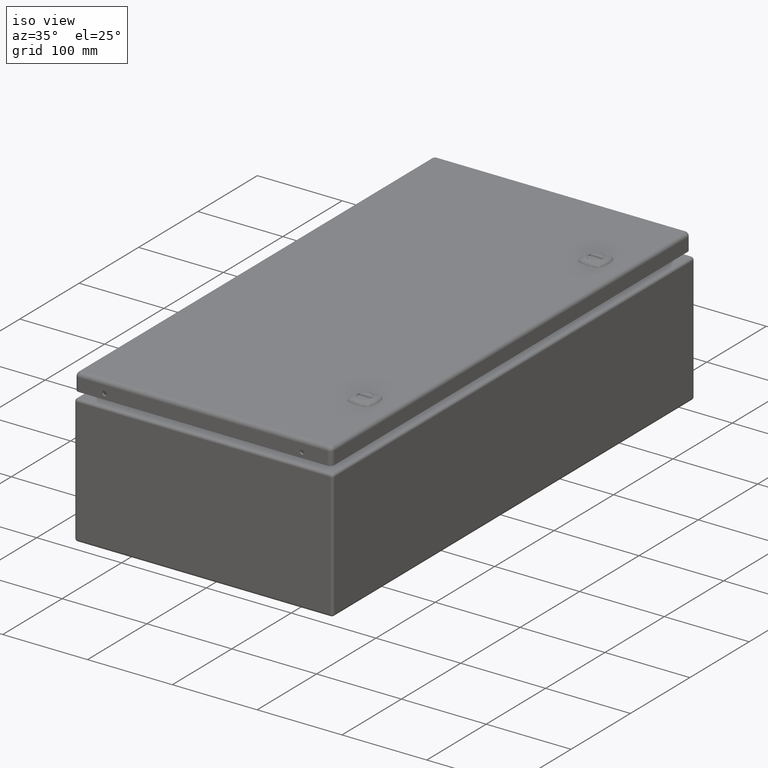
[diagram: clean part render]
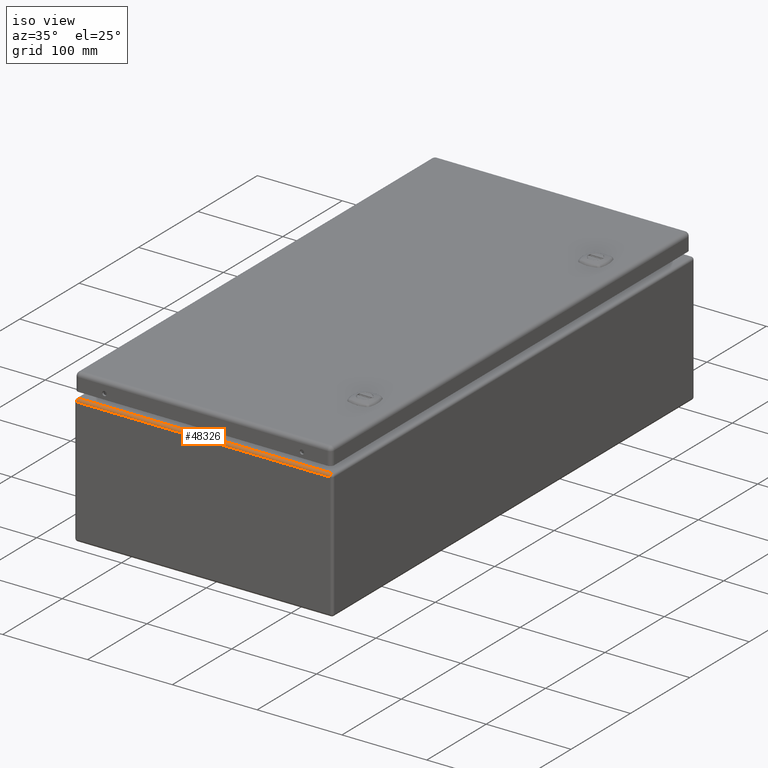
[diagram: same view with one face highlighted and labeled with its STEP entity id]
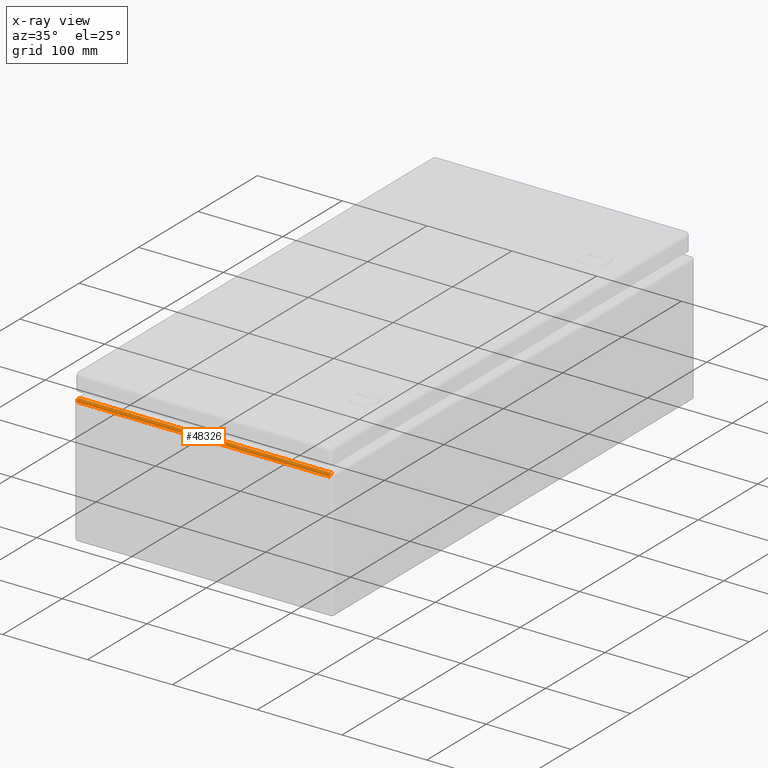
[diagram: x-ray of the same camera — body ghosted, the highlighted face saturated]
A machine part, iso view. The second image highlights one B-rep face of the part: STEP entity #48326.
The next image is the same camera in x-ray: the body ghosted, the highlighted face saturated — about 0% of this face is hidden behind the body in this view.
In plain terms, the highlighted cylindrical surface (edge-blend (fillet) strip) has radius 3.0734 mm, axis along (-1, -0, -0).
Its self-contained STEP definition (entity closure, byte-faithful):
#4072=LINE('',#68868,#7897);
#4112=LINE('',#69075,#7937);
#7897=VECTOR('',#56377,0.393700787401575);
#7937=VECTOR('',#56631,0.393700787401575);
#11710=CYLINDRICAL_SURFACE('',#52159,0.121);
#12394=FACE_OUTER_BOUND('',#15322,.T.);
#15322=EDGE_LOOP('',(#32536,#32537,#32538,#32539));
#18414=CIRCLE('',#52076,0.121);
#18418=CIRCLE('',#52085,0.121);
#20108=VERTEX_POINT('',#68865);
#20109=VERTEX_POINT('',#68867);
#20128=VERTEX_POINT('',#68948);
#20131=VERTEX_POINT('',#68967);
#24820=EDGE_CURVE('',#20109,#20108,#4072,.T.);
#24862=EDGE_CURVE('',#20128,#20108,#18414,.T.);
#24872=EDGE_CURVE('',#20109,#20131,#18418,.T.);
#24926=EDGE_CURVE('',#20128,#20131,#4112,.T.);
#32536=ORIENTED_EDGE('',*,*,#24862,.F.);
#32537=ORIENTED_EDGE('',*,*,#24926,.T.);
#32538=ORIENTED_EDGE('',*,*,#24872,.F.);
#32539=ORIENTED_EDGE('',*,*,#24820,.T.);
#48326=ADVANCED_FACE('',(#12394),#11710,.T.);
#52076=AXIS2_PLACEMENT_3D('',#68950,#56487,#56488);
#52085=AXIS2_PLACEMENT_3D('',#68968,#56511,#56512);
#52159=AXIS2_PLACEMENT_3D('',#69132,#56699,#56700);
#56377=DIRECTION('',(1.,7.94323121799837E-20,-9.04075320656064E-15));
#56487=DIRECTION('center_axis',(1.,7.9432312084943E-20,8.58521917402604E-15));
#56488=DIRECTION('ref_axis',(0.,-1.,0.));
#56511=DIRECTION('center_axis',(-1.,-7.9432312084943E-20,-8.58521917402604E-15));
#56512=DIRECTION('ref_axis',(0.,-1.,0.));
#56631=DIRECTION('',(-1.,-7.94323121799837E-20,9.04075320656064E-15));
#56699=DIRECTION('center_axis',(-1.,-7.9432312084943E-20,-8.58521917402604E-15));
#56700=DIRECTION('ref_axis',(0.,-1.,-2.13884019093184E-15));
#68865=CARTESIAN_POINT('',(5.87899999999995,-12.,5.87900000013044));
#68867=CARTESIAN_POINT('',(-5.87899999999995,-12.,5.87900000013054));
#68868=CARTESIAN_POINT('',(-4.4143227976195,-12.,5.87900000013053));
#68948=CARTESIAN_POINT('',(5.87899999999995,-11.879,6.00000000013044));
#68950=CARTESIAN_POINT('Origin',(5.87899999999995,-11.879,5.87900000013048));
#68967=CARTESIAN_POINT('',(-5.87899999999995,-11.879,6.00000000013054));
#68968=CARTESIAN_POINT('Origin',(-5.87899999999995,-11.879,5.87900000013038));
#69075=CARTESIAN_POINT('',(-4.41432279761949,-11.879,6.00000000013053));
#69132=CARTESIAN_POINT('Origin',(-4.47585975281953E-14,-11.879,5.87900000013043));